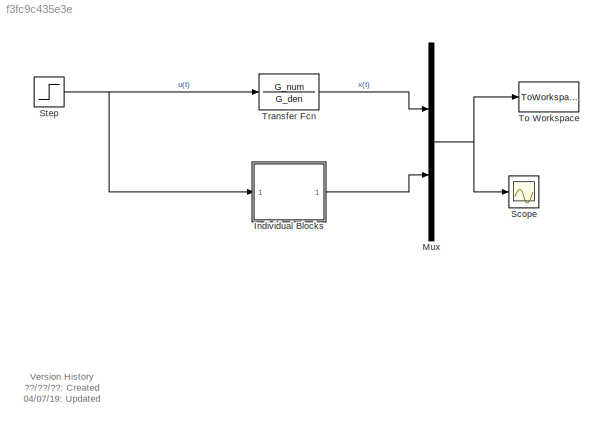
MODEL slx_f3fc9c435e3e
KIND model
CONFIG AbsTol = auto
CONFIG EnableMultiTasking = on
CONFIG FixedStep = auto
CONFIG MaxStep = auto
CONFIG MinStep = auto
CONFIG RelTol = 1e-3
CONFIG SampleTimeConstraint = Unconstrained
CONFIG Solver = ode45
CONFIG SolverName = ode45
CONFIG StartTime = 0.0
CONFIG StopTime = 10.0
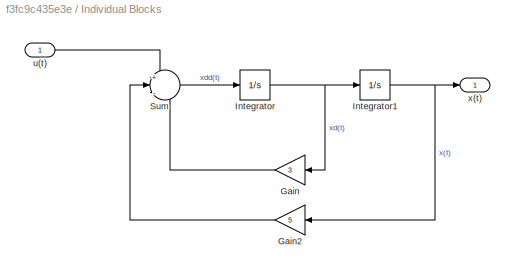
BLOCK [SubSystem] Individual Blocks
  Ports = [1, 1]
  RequestExecContextInheritance = off
BLOCK [Gain] Individual Blocks/Gain
  Gain = 3
  OutDataTypeStr = Inherit: Inherit via internal rule
  ParamDataTypeStr = Inherit: Inherit via internal rule
  SaturateOnIntegerOverflow = off
BLOCK [Gain] Individual Blocks/Gain2
  Gain = 5
  OutDataTypeStr = Inherit: Inherit via internal rule
  ParamDataTypeStr = Inherit: Inherit via internal rule
  SaturateOnIntegerOverflow = off
BLOCK [Integrator] Individual Blocks/Integrator
  InitialCondition = xdot0
  Ports = [1, 1]
BLOCK [Integrator] Individual Blocks/Integrator1
  InitialCondition = x0
  Ports = [1, 1]
BLOCK [Sum] Individual Blocks/Sum
  IconShape = round
  InputSameDT = off
  Inputs = +|-|-
  OutDataTypeStr = Inherit: Inherit via internal rule
  Ports = [3, 1]
  SaturateOnIntegerOverflow = off
BLOCK [Inport] Individual Blocks/u(t)
  IconDisplay = Port number
BLOCK [Outport] Individual Blocks/x(t)
  IconDisplay = Port number
BLOCK [Mux] Mux
  DisplayOption = bar
  Inputs = 2
  Ports = [2, 1]
BLOCK [Scope] Scope
  Floating = off
  NumInputPorts = 1
  Ports = [1]
  ScopeSpecificationString = Simulink.scopes.TimeScopeBlockCfg('CurrentConfiguration', extmgr.ConfigurationSet(extmgr.Configuration('Core','General UI',true),extmgr.Configuration('Core','Source UI',true),extmgr.Configuration('Sources','WiredSimulink',true,'DataLoggingSaveFormat','StructureWithTime','DataLoggingLimitDataPoints',true,'DataLoggingDecimation','1','DataLoggingDecimateData',true),extmgr.Configuration('Visuals','Tim...<+1684ch>
BLOCK [Step] Step
  SampleTime = 0
BLOCK [ToWorkspace] To Workspace
  MaxDataPoints = inf
  Ports = [1]
  SampleTime = -1
  SaveFormat = Structure With Time
  VariableName = simX
BLOCK [TransferFcn] Transfer Fcn
  Denominator = G_den
  Numerator = G_num
ANNOTATION (root): Version History ??/??/??: Created 04/07/19: Updated
LINE Individual Blocks/Gain2:1 -> Individual Blocks/Sum:2
LINE Individual Blocks/Gain:1 -> Individual Blocks/Sum:3
NET Individual Blocks/Integrator1:1 -> Individual Blocks/Gain2:1, Individual Blocks/x(t):1
NET Individual Blocks/Integrator:1 -> Individual Blocks/Gain:1, Individual Blocks/Integrator1:1
LINE Individual Blocks/Sum:1 -> Individual Blocks/Integrator:1
LINE Individual Blocks/u(t):1 -> Individual Blocks/Sum:1
LINE Individual Blocks:1 -> Mux:2
NET Mux:1 -> Scope:1, To Workspace:1
NET Step:1 -> Individual Blocks:1, Transfer Fcn:1
LINE Transfer Fcn:1 -> Mux:1
note: NET lines group one-source signal fan-out (src -> all destinations, sorted); 1:1 wires keep LINE
